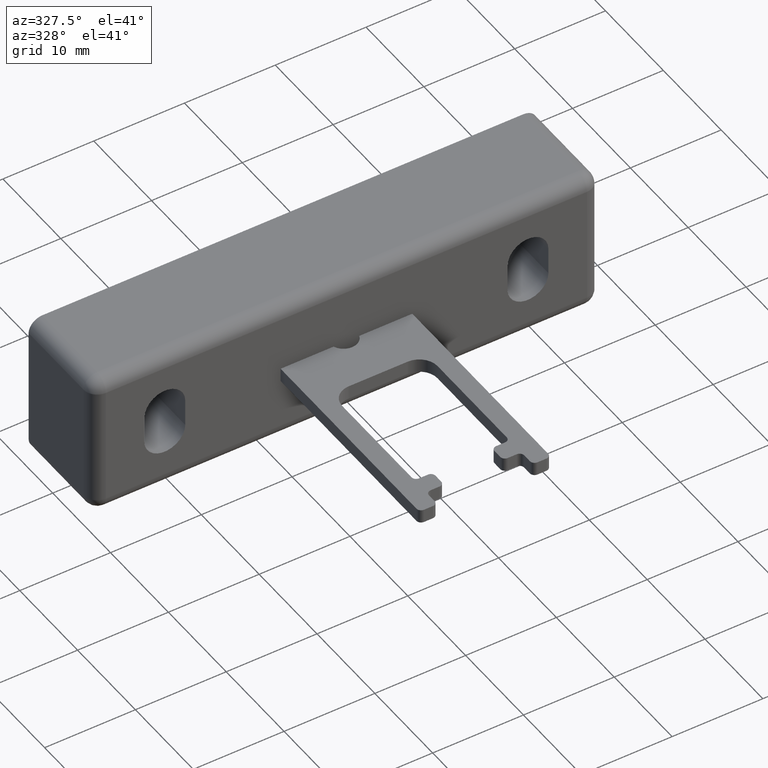
[diagram: clean part render]
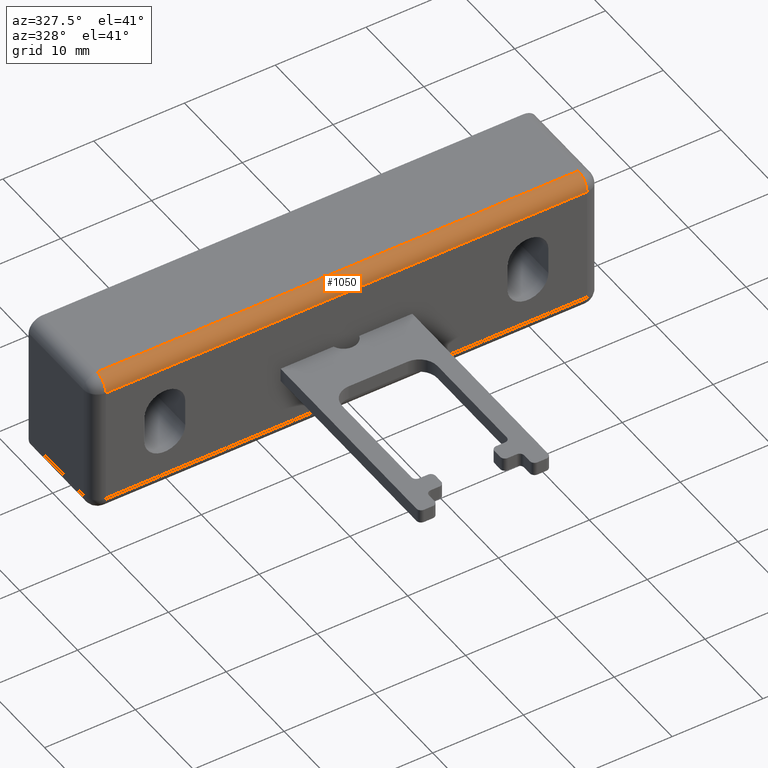
[diagram: same view with one face highlighted and labeled with its STEP entity id]
A machine part, auxiliary view. The second image highlights one B-rep face of the part: STEP entity #1050.
In plain terms, the highlighted cylindrical surface (edge-blend (fillet) strip) has radius 1.5 mm, axis along (1, 0, 0).
Its self-contained STEP definition (entity closure, byte-faithful):
#70=LINE('',#1613,#172);
#71=LINE('',#1614,#173);
#172=VECTOR('',#1282,53.);
#173=VECTOR('',#1283,53.);
#269=CYLINDRICAL_SURFACE('',#1127,1.5);
#300=FACE_OUTER_BOUND('',#360,.T.);
#360=EDGE_LOOP('',(#757,#758,#759,#760));
#415=CIRCLE('',#1105,1.5);
#420=CIRCLE('',#1111,1.5);
#469=VERTEX_POINT('',#1564);
#470=VERTEX_POINT('',#1565);
#473=VERTEX_POINT('',#1572);
#474=VERTEX_POINT('',#1574);
#569=EDGE_CURVE('',#469,#470,#415,.F.);
#574=EDGE_CURVE('',#473,#474,#420,.F.);
#593=EDGE_CURVE('',#470,#473,#70,.T.);
#594=EDGE_CURVE('',#474,#469,#71,.T.);
#757=ORIENTED_EDGE('',*,*,#569,.T.);
#758=ORIENTED_EDGE('',*,*,#593,.T.);
#759=ORIENTED_EDGE('',*,*,#574,.T.);
#760=ORIENTED_EDGE('',*,*,#594,.T.);
#1050=ADVANCED_FACE('',(#300),#269,.T.);
#1105=AXIS2_PLACEMENT_3D('',#1566,#1226,#1227);
#1111=AXIS2_PLACEMENT_3D('',#1576,#1238,#1239);
#1127=AXIS2_PLACEMENT_3D('',#1612,#1280,#1281);
#1226=DIRECTION('center_axis',(1.,0.,0.));
#1227=DIRECTION('ref_axis',(0.,-1.,0.));
#1238=DIRECTION('center_axis',(-1.,0.,0.));
#1239=DIRECTION('ref_axis',(0.,0.,1.));
#1280=DIRECTION('center_axis',(1.,0.,0.));
#1281=DIRECTION('ref_axis',(0.,-0.707106781186548,0.707106781186547));
#1282=DIRECTION('',(-1.,0.,0.));
#1283=DIRECTION('',(1.,0.,0.));
#1564=CARTESIAN_POINT('',(54.5,0.,14.5));
#1565=CARTESIAN_POINT('',(54.5,1.5,16.));
#1566=CARTESIAN_POINT('Origin',(54.5,1.5,14.5));
#1572=CARTESIAN_POINT('',(1.5,1.5,16.));
#1574=CARTESIAN_POINT('',(1.5,0.,14.5));
#1576=CARTESIAN_POINT('Origin',(1.5,1.5,14.5));
#1612=CARTESIAN_POINT('Origin',(14.,1.5,14.5));
#1613=CARTESIAN_POINT('',(14.,1.5,16.));
#1614=CARTESIAN_POINT('',(14.,0.,14.5));